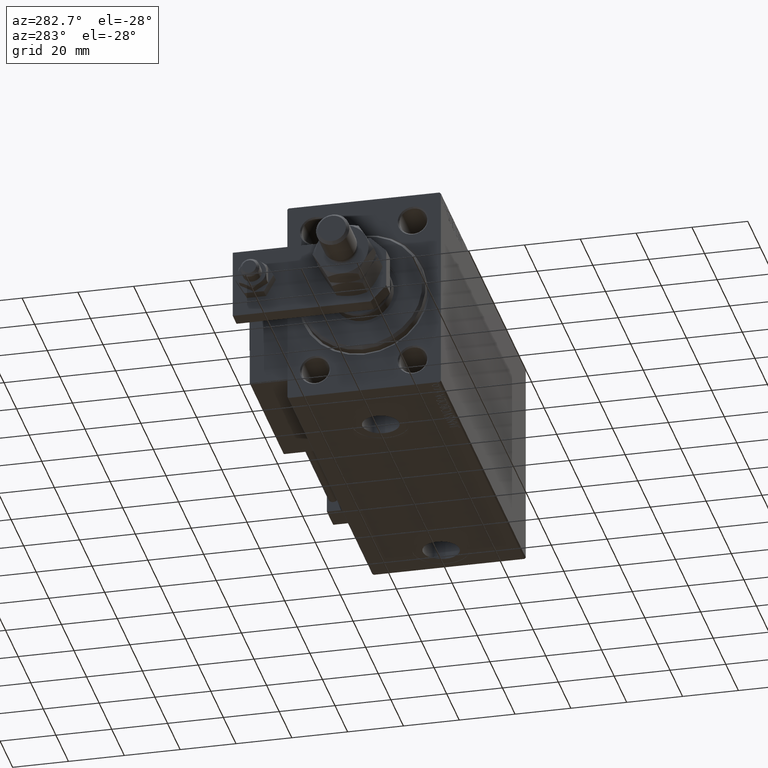
[diagram: clean part render]
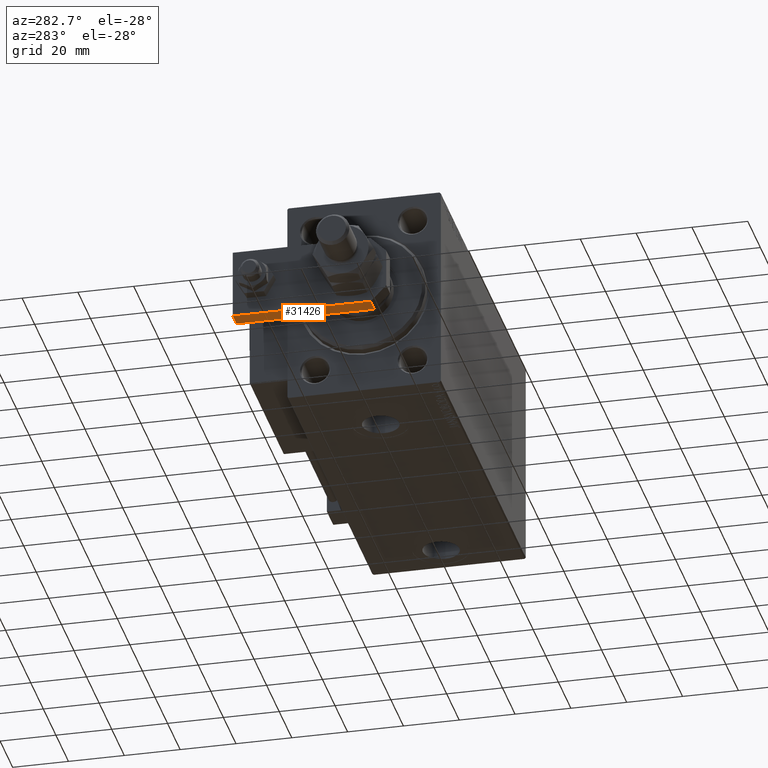
[diagram: same view with one face highlighted and labeled with its STEP entity id]
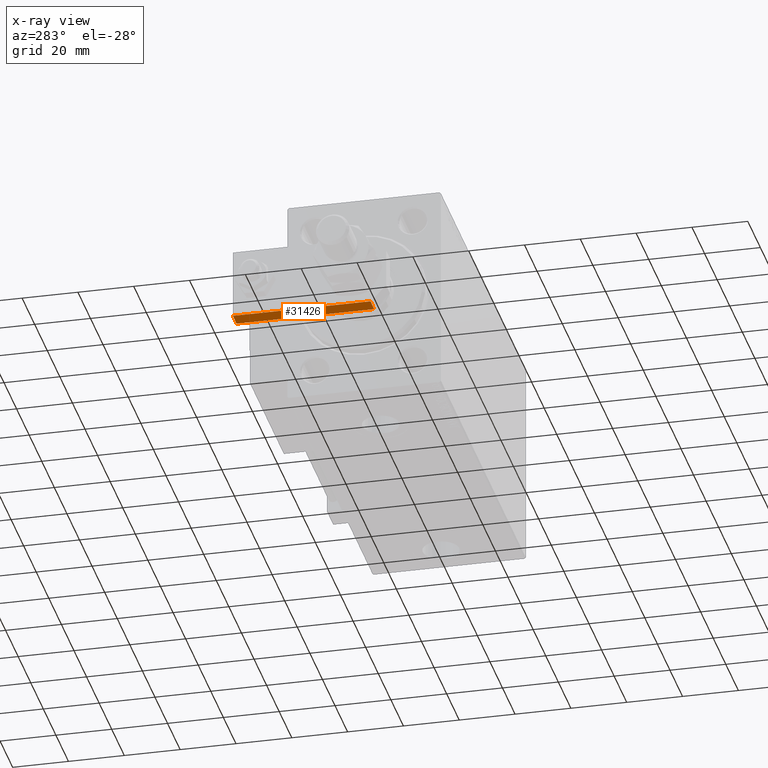
[diagram: x-ray of the same camera — body ghosted, the highlighted face saturated]
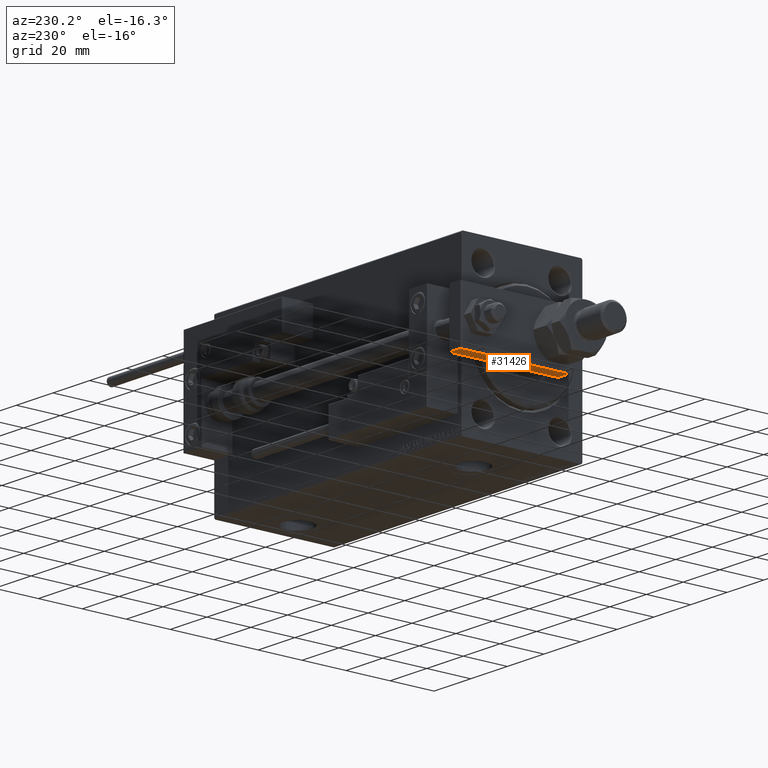
[diagram: same view with one face highlighted and labeled with its STEP entity id]
A machine part, auxiliary view. The second image highlights one B-rep face of the part: STEP entity #31426.
The next image is the same camera in x-ray: the body ghosted, the highlighted face saturated — about 0% of this face is hidden behind the body in this view.
A second angle (auxiliary view) of the same face is appended — the face is thin or edge-on in the first view.
In plain terms, the highlighted planar face has unit normal (0, -0, 1).
Its self-contained STEP definition (entity closure, byte-faithful):
#315 = DIRECTION ( 'NONE',  ( -9.462128050782584375E-17, -1.000000000000000000, 0.000000000000000000 ) ) ;
#1190 = PLANE ( 'NONE',  #19072 ) ;
#1692 = LINE ( 'NONE', #5196, #28974 ) ;
#3804 = VECTOR ( 'NONE', #46203, 1000.000000000000000 ) ;
#5196 = CARTESIAN_POINT ( 'NONE',  ( -12.49999999999999822, 55.00000000000000000, 6.000000000000000000 ) ) ;
#5791 = EDGE_LOOP ( 'NONE', ( #7697, #45718, #13513, #23532 ) ) ;
#7697 = ORIENTED_EDGE ( 'NONE', *, *, #34425, .T. ) ;
#7739 = EDGE_CURVE ( 'NONE', #10139, #24117, #47451, .T. ) ;
#8911 = CARTESIAN_POINT ( 'NONE',  ( -12.50000000000000355, 5.660000000000005471, 0.000000000000000000 ) ) ;
#9271 = LINE ( 'NONE', #13544, #3804 ) ;
#10139 = VERTEX_POINT ( 'NONE', #8911 ) ;
#10531 = DIRECTION ( 'NONE',  ( 1.000000000000000000, -9.462128050782583143E-17, 0.000000000000000000 ) ) ;
#13251 = FACE_OUTER_BOUND ( 'NONE', #5791, .T. ) ;
#13513 = ORIENTED_EDGE ( 'NONE', *, *, #27209, .F. ) ;
#13544 = CARTESIAN_POINT ( 'NONE',  ( -12.49999999999999822, 55.00000000000000000, 0.000000000000000000 ) ) ;
#14269 = DIRECTION ( 'NONE',  ( -0.000000000000000000, -0.000000000000000000, -1.000000000000000000 ) ) ;
#19072 = AXIS2_PLACEMENT_3D ( 'NONE', #30598, #10531, #22564 ) ;
#19343 = EDGE_CURVE ( 'NONE', #22804, #23960, #1692, .T. ) ;
#20377 = CARTESIAN_POINT ( 'NONE',  ( -12.49999999999999822, 55.00000000000000000, 6.000000000000000000 ) ) ;
#22564 = DIRECTION ( 'NONE',  ( 9.462128050782583143E-17, 1.000000000000000000, 0.000000000000000000 ) ) ;
#22804 = VERTEX_POINT ( 'NONE', #38043 ) ;
#23079 = DIRECTION ( 'NONE',  ( 0.000000000000000000, 0.000000000000000000, 1.000000000000000000 ) ) ;
#23532 = ORIENTED_EDGE ( 'NONE', *, *, #19343, .T. ) ;
#23960 = VERTEX_POINT ( 'NONE', #24885 ) ;
#24117 = VERTEX_POINT ( 'NONE', #39294 ) ;
#24885 = CARTESIAN_POINT ( 'NONE',  ( -12.49999999999999822, 55.00000000000000000, 0.000000000000000000 ) ) ;
#26818 = CARTESIAN_POINT ( 'NONE',  ( -12.50000000000000355, 5.660000000000005471, 6.000000000000000000 ) ) ;
#27209 = EDGE_CURVE ( 'NONE', #22804, #24117, #49827, .T. ) ;
#28974 = VECTOR ( 'NONE', #14269, 1000.000000000000000 ) ;
#30598 = CARTESIAN_POINT ( 'NONE',  ( -12.49999999999999822, 55.00000000000000000, 6.000000000000000000 ) ) ;
#31426 = ADVANCED_FACE ( 'NONE', ( #13251 ), #1190, .F. ) ;
#32199 = VECTOR ( 'NONE', #23079, 1000.000000000000000 ) ;
#34425 = EDGE_CURVE ( 'NONE', #23960, #10139, #9271, .T. ) ;
#36016 = VECTOR ( 'NONE', #315, 1000.000000000000000 ) ;
#38043 = CARTESIAN_POINT ( 'NONE',  ( -12.49999999999999822, 55.00000000000000000, 6.000000000000000000 ) ) ;
#39294 = CARTESIAN_POINT ( 'NONE',  ( -12.50000000000000355, 5.660000000000005471, 6.000000000000000000 ) ) ;
#45718 = ORIENTED_EDGE ( 'NONE', *, *, #7739, .T. ) ;
#46203 = DIRECTION ( 'NONE',  ( -9.462128050782584375E-17, -1.000000000000000000, 0.000000000000000000 ) ) ;
#47451 = LINE ( 'NONE', #26818, #32199 ) ;
#49827 = LINE ( 'NONE', #20377, #36016 ) ;